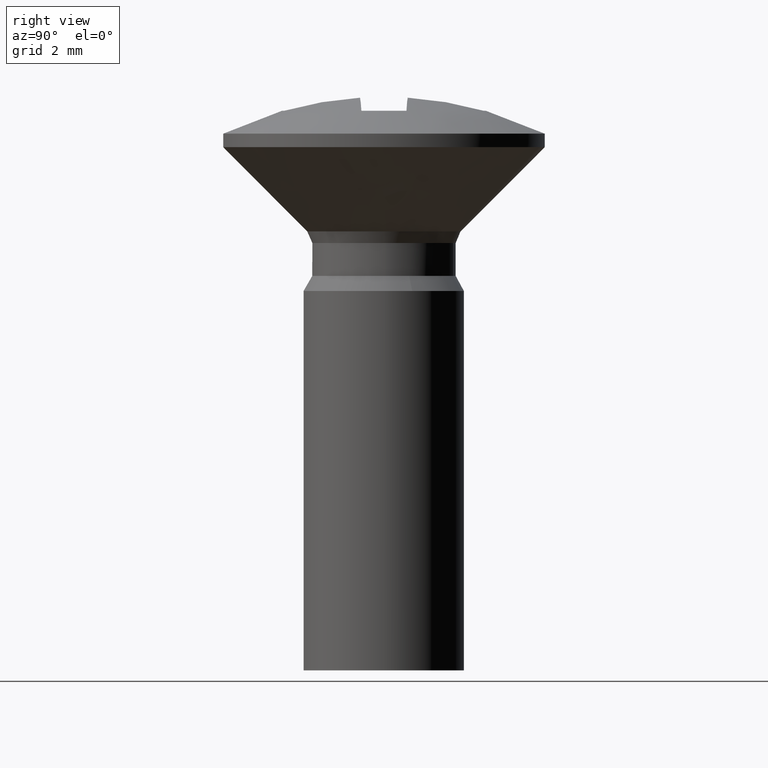
[diagram: clean part render]
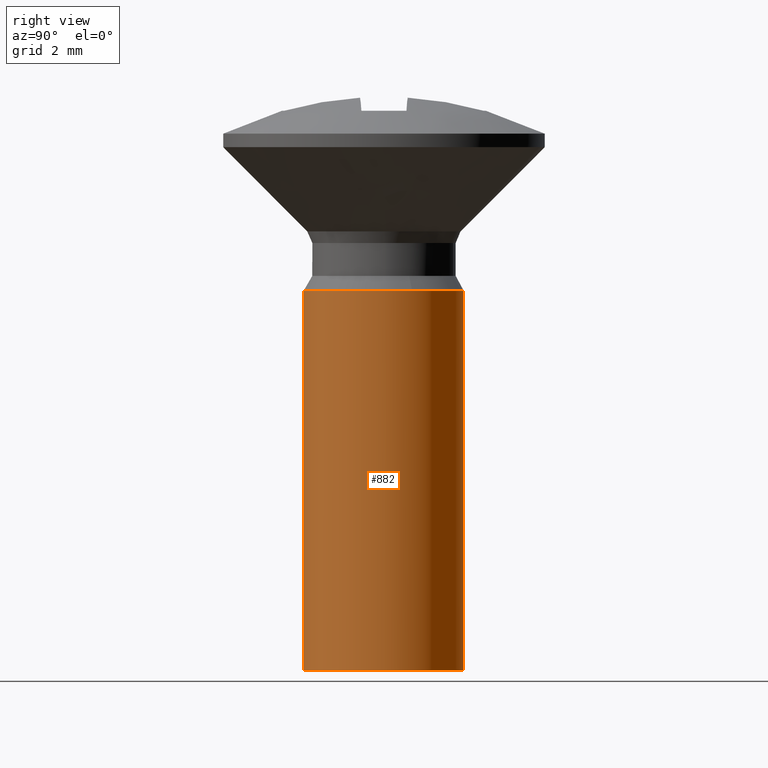
[diagram: same view with one face highlighted and labeled with its STEP entity id]
A machine part, right view. The second image highlights one B-rep face of the part: STEP entity #882.
In plain terms, the highlighted face is a freeform B-spline surface patch.
Its self-contained STEP definition (entity closure, byte-faithful):
#686=CARTESIAN_POINT('',(1.404215368163544,0.527426961592473,-2.930700000000777));
#687=VERTEX_POINT('',#686);
#688=CARTESIAN_POINT('',(1.500000000000000,0.0,-2.930700000000000));
#689=VERTEX_POINT('',#688);
#690=CARTESIAN_POINT('',(1.404215368163544,0.527426961592473,-2.930700000000777));
#691=CARTESIAN_POINT('',(1.500000000000000,0.272411079105611,-2.930700000000000));
#692=CARTESIAN_POINT('',(1.500000000000000,0.0,-2.930700000000000));
#700=(BOUNDED_CURVE()B_SPLINE_CURVE(2,(#690,#691,#692),.UNSPECIFIED.,.F.,.U.)B_SPLINE_CURVE_WITH_KNOTS((3,3),(0.440284170897794,0.500000000000000),.UNSPECIFIED.)CURVE()GEOMETRIC_REPRESENTATION_ITEM()RATIONAL_B_SPLINE_CURVE((0.893499554634401,0.930038554400564,1.0))REPRESENTATION_ITEM(''));
#701=EDGE_CURVE('',#687,#689,#700,.T.);
#710=CARTESIAN_POINT('',(0.091572809306063,-1.497202197632569,-2.930700000000000));
#711=VERTEX_POINT('',#710);
#717=CARTESIAN_POINT('',(1.500000000000000,0.0,-2.930700000000000));
#718=CARTESIAN_POINT('',(1.500000000000000,-1.411059100344270,-2.930700000000000));
#719=CARTESIAN_POINT('',(0.091572809306063,-1.497202197632569,-2.930699999999999));
#727=(BOUNDED_CURVE()B_SPLINE_CURVE(2,(#717,#718,#719),.UNSPECIFIED.,.F.,.U.)B_SPLINE_CURVE_WITH_KNOTS((3,3),(0.500000000000000,0.739332962240226),.UNSPECIFIED.)CURVE()GEOMETRIC_REPRESENTATION_ITEM()RATIONAL_B_SPLINE_CURVE((1.0,0.719603993285207,0.976072041669468))REPRESENTATION_ITEM(''));
#728=EDGE_CURVE('',#689,#711,#727,.T.);
#755=CARTESIAN_POINT('',(-0.177049026343359,1.489514565979596,-2.930700000000005));
#756=VERTEX_POINT('',#755);
#757=CARTESIAN_POINT('',(-0.177049026343359,1.489514565979596,-2.930700000000005));
#758=CARTESIAN_POINT('',(-0.088835004364054,1.500000000000000,-2.930699999999999));
#759=CARTESIAN_POINT('',(0.0,1.500000000000000,-2.930700000000000));
#760=CARTESIAN_POINT('',(1.038914393533797,1.500000000000000,-2.930700000000000));
#761=CARTESIAN_POINT('',(1.404215368163544,0.527426961592473,-2.930700000000777));
#769=(BOUNDED_CURVE()B_SPLINE_CURVE(2,(#757,#758,#759,#760,#761),.UNSPECIFIED.,.F.,.U.)B_SPLINE_CURVE_WITH_KNOTS((3,2,3),(0.229562737387603,0.250000000000000,0.440284170897795),.UNSPECIFIED.)CURVE()GEOMETRIC_REPRESENTATION_ITEM()RATIONAL_B_SPLINE_CURVE((0.956027271388376,0.976056257478877,1.0,0.777068226785984,0.893499554634401))REPRESENTATION_ITEM(''));
#770=EDGE_CURVE('',#756,#687,#769,.T.);
#811=CARTESIAN_POINT('',(-0.177051351985138,1.489514289545500,-2.753967499999999));
#812=CARTESIAN_POINT('',(-0.134422092956966,1.494581423172908,-2.753967500000000));
#813=CARTESIAN_POINT('',(-0.091572809302285,1.497202197632800,-2.753967499999999));
#814=CARTESIAN_POINT('',(1.405629388330515,1.588775006935085,-2.753967500000000));
#815=CARTESIAN_POINT('',(1.497202197632800,0.091572809302285,-2.753967499999999));
#816=CARTESIAN_POINT('',(1.588775006935085,-1.405629388330515,-2.753967500000000));
#817=CARTESIAN_POINT('',(0.091572809302285,-1.497202197632800,-2.753967499999999));
#818=CARTESIAN_POINT('',(-0.177051351985138,1.489514289545500,-10.181150812500004));
#819=CARTESIAN_POINT('',(-0.134422092956966,1.494581423172908,-10.181150812500004));
#820=CARTESIAN_POINT('',(-0.091572809302285,1.497202197632800,-10.181150812500000));
#821=CARTESIAN_POINT('',(1.405629388330515,1.588775006935085,-10.181150812500002));
#822=CARTESIAN_POINT('',(1.497202197632800,0.091572809302285,-10.181150812500000));
#823=CARTESIAN_POINT('',(1.588775006935085,-1.405629388330515,-10.181150812500002));
#824=CARTESIAN_POINT('',(0.091572809302285,-1.497202197632800,-10.181150812500000));
#832=(BOUNDED_SURFACE()B_SPLINE_SURFACE(2,1,((#811,#818),(#812,#819),(#813,#820),(#814,#821),(#815,#822),(#816,#823),(#817,#824)),.UNSPECIFIED.,.F.,.F.,.U.)B_SPLINE_SURFACE_WITH_KNOTS((3,2,2,3),(2,2),(3.078760800517997,3.141592653589793,4.712388980384690,6.283185307179586),(0.0,7.427183312500004),.UNSPECIFIED.)GEOMETRIC_REPRESENTATION_ITEM()RATIONAL_B_SPLINE_SURFACE(((0.977505800795127,0.977505800795127),(0.988284271247462,0.988284271247462),(1.0,1.0),(0.707106781186548,0.707106781186548),(1.0,1.0),(0.707106781186548,0.707106781186548),(1.0,1.0)))REPRESENTATION_ITEM('')SURFACE());
#833=ORIENTED_EDGE('',*,*,#770,.T.);
#834=ORIENTED_EDGE('',*,*,#701,.T.);
#835=ORIENTED_EDGE('',*,*,#728,.T.);
#836=CARTESIAN_POINT('',(0.091572809309841,-1.497202197632338,-10.0));
#837=VERTEX_POINT('',#836);
#838=CARTESIAN_POINT('',(0.091572809306063,-1.497202197632569,-2.930700000000000));
#839=CARTESIAN_POINT('',(0.091572809309841,-1.497202197632338,-10.0));
#840=QUASI_UNIFORM_CURVE('',1,(#838,#839),.UNSPECIFIED.,.F.,.U.);
#841=EDGE_CURVE('',#711,#837,#840,.T.);
#842=ORIENTED_EDGE('',*,*,#841,.T.);
#843=CARTESIAN_POINT('',(1.500000000000000,0.0,-10.0));
#844=VERTEX_POINT('',#843);
#845=CARTESIAN_POINT('',(1.500000000000000,0.0,-10.0));
#846=CARTESIAN_POINT('',(1.500000000000000,-1.411059100344270,-10.0));
#847=CARTESIAN_POINT('',(0.091572809309841,-1.497202197632338,-10.0));
#855=(BOUNDED_CURVE()B_SPLINE_CURVE(2,(#845,#846,#847),.UNSPECIFIED.,.F.,.U.)B_SPLINE_CURVE_WITH_KNOTS((3,3),(0.500000000000000,0.739332962240226),.UNSPECIFIED.)CURVE()GEOMETRIC_REPRESENTATION_ITEM()RATIONAL_B_SPLINE_CURVE((1.0,0.719603993285207,0.976072041669468))REPRESENTATION_ITEM(''));
#856=EDGE_CURVE('',#844,#837,#855,.T.);
#857=ORIENTED_EDGE('',*,*,#856,.F.);
#858=CARTESIAN_POINT('',(-0.177049054338591,1.489514562652026,-10.0));
#859=VERTEX_POINT('',#858);
#860=CARTESIAN_POINT('',(-0.177049054338591,1.489514562652026,-10.0));
#861=CARTESIAN_POINT('',(-0.088835018509645,1.500000000000000,-9.999999999999998));
#862=CARTESIAN_POINT('',(0.0,1.500000000000000,-10.0));
#863=CARTESIAN_POINT('',(1.500000000000000,1.500000000000000,-10.000000000000002));
#864=CARTESIAN_POINT('',(1.500000000000000,0.0,-10.0));
#872=(BOUNDED_CURVE()B_SPLINE_CURVE(2,(#860,#861,#862,#863,#864),.UNSPECIFIED.,.F.,.U.)B_SPLINE_CURVE_WITH_KNOTS((3,2,3),(0.229562734211208,0.250000000000000,0.500000000000000),.UNSPECIFIED.)CURVE()GEOMETRIC_REPRESENTATION_ITEM()RATIONAL_B_SPLINE_CURVE((0.956027265162496,0.976056253757498,1.0,0.707106781186548,1.0))REPRESENTATION_ITEM(''));
#873=EDGE_CURVE('',#859,#844,#872,.T.);
#874=ORIENTED_EDGE('',*,*,#873,.F.);
#875=CARTESIAN_POINT('',(-0.177049026343359,1.489514565979596,-2.930700000000005));
#876=CARTESIAN_POINT('',(-0.177049054338591,1.489514562652026,-10.0));
#877=QUASI_UNIFORM_CURVE('',1,(#875,#876),.UNSPECIFIED.,.F.,.U.);
#878=EDGE_CURVE('',#756,#859,#877,.T.);
#879=ORIENTED_EDGE('',*,*,#878,.F.);
#880=EDGE_LOOP('',(#833,#834,#835,#842,#857,#874,#879));
#881=FACE_OUTER_BOUND('',#880,.T.);
#882=ADVANCED_FACE('',(#881),#832,.T.);